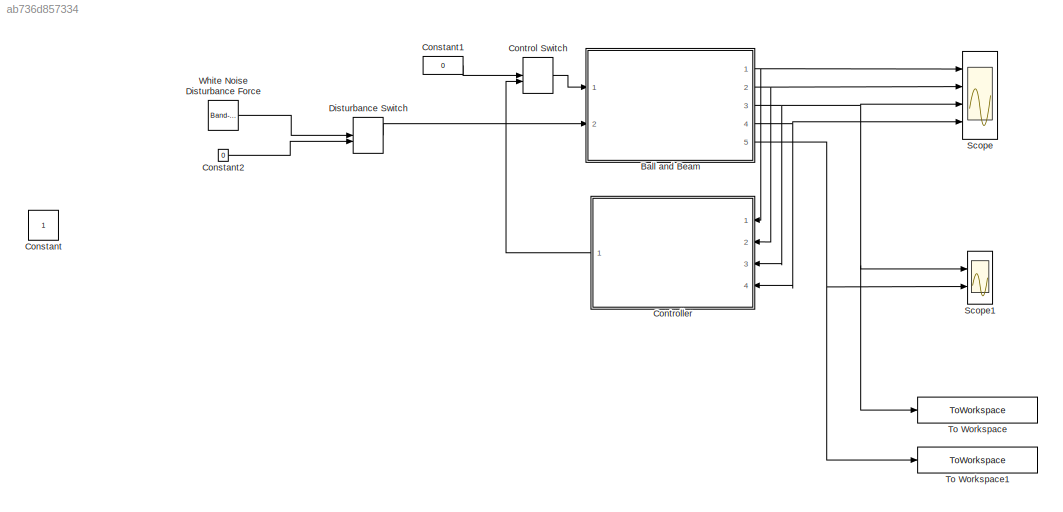
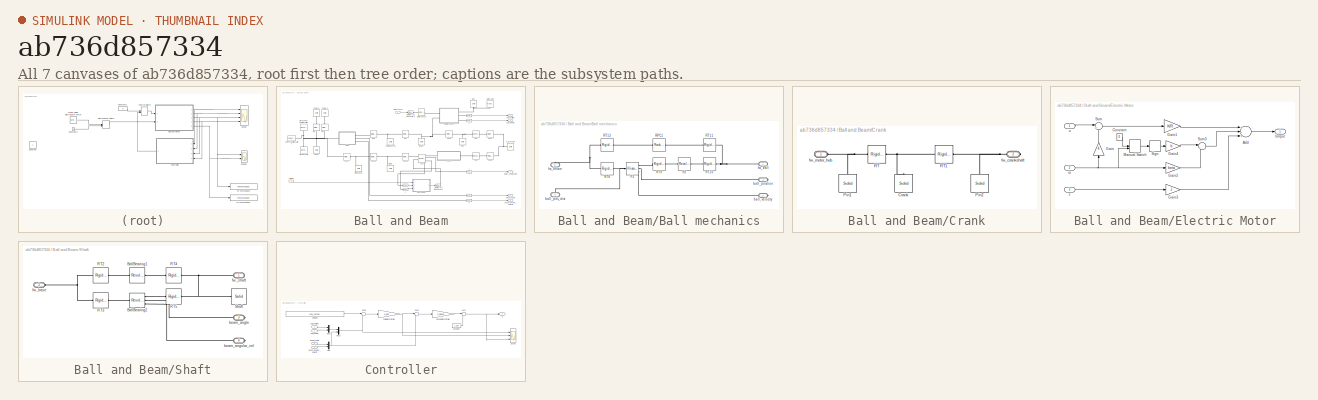
[diagram: thumbnail index - all 7 canvases of the model, root first then tree order]
MODEL slx_ab736d857334
KIND model
CONFIG AbsTol = auto
CONFIG EnableMultiTasking = off
CONFIG FixedStep = auto
CONFIG MaxStep = 1e-2
CONFIG MinStep = auto
CONFIG RelTol = 1e-3
CONFIG SampleTimeConstraint = Unconstrained
CONFIG Solver = VariableStepAuto
CONFIG SolverName = VariableStepAuto
CONFIG StartTime = 0.0
CONFIG StopTime = 1
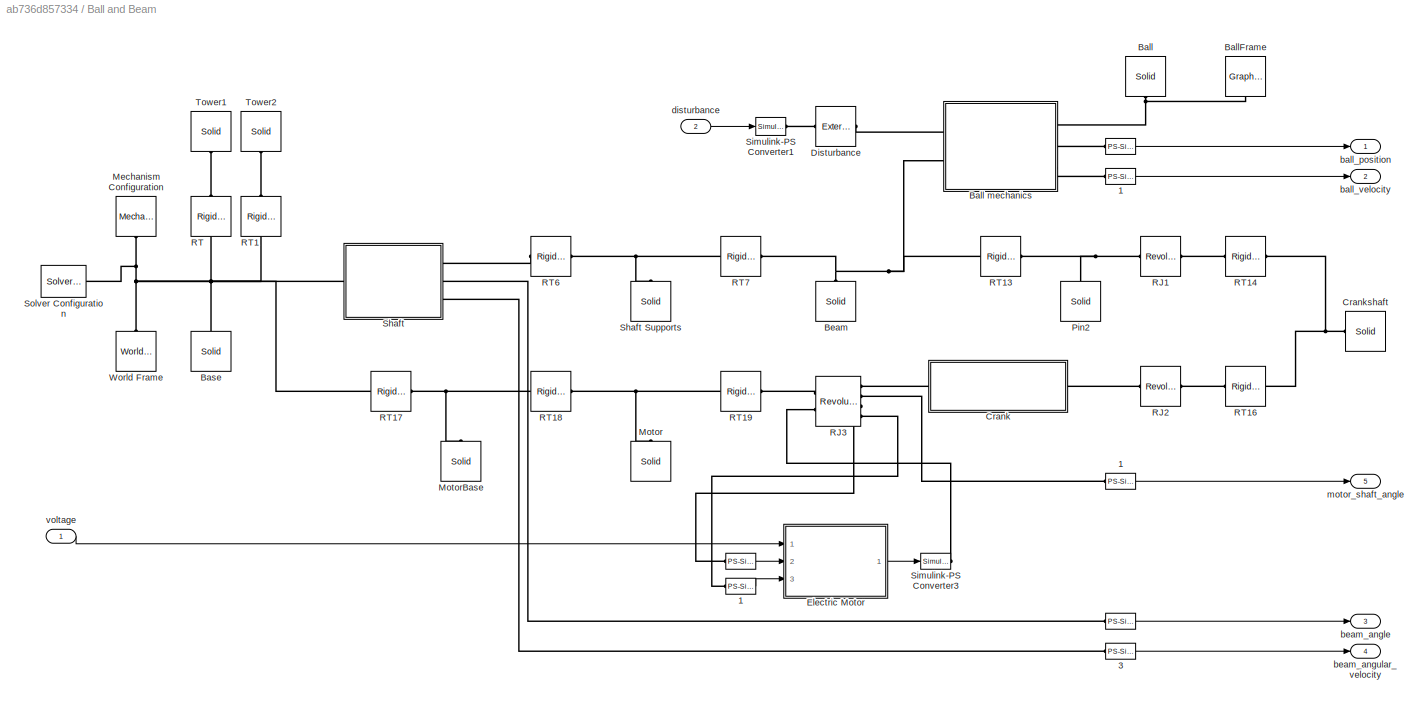
BLOCK [SubSystem] Ball and Beam
  Ports = [2, 5]
  RequestExecContextInheritance = off
  Variant = off
BLOCK [Reference] Ball and Beam/   REF=nesl_utility/PS-Simulink
Converter
  Ports = [0, 1, 0, 0, 0, 1]
  SourceBlock = nesl_utility/PS-Simulink\nConverter
  SourceType = PS-Simulink\nConverter
BLOCK [Reference] Ball and Beam/    REF=nesl_utility/PS-Simulink
Converter
  Ports = [0, 1, 0, 0, 0, 1]
  SourceBlock = nesl_utility/PS-Simulink\nConverter
  SourceType = PS-Simulink\nConverter
BLOCK [Reference] Ball and Beam/       REF=nesl_utility/PS-Simulink
Converter
  Ports = [0, 1, 0, 0, 0, 1]
  SourceBlock = nesl_utility/PS-Simulink\nConverter
  SourceType = PS-Simulink\nConverter
BLOCK [Reference] Ball and Beam/     1  REF=nesl_utility/PS-Simulink
Converter
  Ports = [0, 1, 0, 0, 0, 1]
  SourceBlock = nesl_utility/PS-Simulink\nConverter
  SourceType = PS-Simulink\nConverter
BLOCK [Reference] Ball and Beam/  1  REF=nesl_utility/PS-Simulink
Converter
  Ports = [0, 1, 0, 0, 0, 1]
  SourceBlock = nesl_utility/PS-Simulink\nConverter
  SourceType = PS-Simulink\nConverter
BLOCK [Reference] Ball and Beam/ 1  REF=nesl_utility/PS-Simulink
Converter
  Ports = [0, 1, 0, 0, 0, 1]
  SourceBlock = nesl_utility/PS-Simulink\nConverter
  SourceType = PS-Simulink\nConverter
BLOCK [Reference] Ball and Beam/ 3  REF=nesl_utility/PS-Simulink
Converter
  Ports = [0, 1, 0, 0, 0, 1]
  SourceBlock = nesl_utility/PS-Simulink\nConverter
  SourceType = PS-Simulink\nConverter
BLOCK [Reference] Ball and Beam/Ball  REF=sm_lib/Body Elements/Solid
  Ports = [0, 0, 0, 0, 0, 0, 1]
  SourceBlock = sm_lib/Body Elements/Solid
  SourceType = Solid
BLOCK [SubSystem] Ball and Beam/Ball mechanics
  Ports = [0, 0, 0, 0, 0, 2, 3]
  RequestExecContextInheritance = off
  Variant = off
BLOCK [Reference] Ball and Beam/Ball mechanics/PJ  REF=sm_lib/Joints/Prismatic
Joint
  Ports = [0, 0, 0, 0, 0, 1, 3]
  SourceBlock = sm_lib/Joints/Prismatic\nJoint
  SourceType = Prismatic\nJoint
BLOCK [Reference] Ball and Beam/Ball mechanics/RJ  REF=sm_lib/Joints/Revolute Joint
  Ports = [0, 0, 0, 0, 0, 1, 1]
  SourceBlock = sm_lib/Joints/Revolute Joint
  SourceType = Revolute Joint
BLOCK [Reference] Ball and Beam/Ball mechanics/RPC1  REF=sm_lib/Gears and
Couplings/Gears/Rack and Pinion
Constraint
  Ports = [0, 0, 0, 0, 0, 1, 1]
  SourceBlock = sm_lib/Gears and\nCouplings/Gears/Rack and Pinion\nConstraint
  SourceType = Rack and Pinion\nConstraint
BLOCK [Reference] Ball and Beam/Ball mechanics/RT10  REF=sm_lib/Frames and
Transforms/Rigid
Transform
  Ports = [0, 0, 0, 0, 0, 1, 1]
  SourceBlock = sm_lib/Frames and\nTransforms/Rigid\nTransform
  SourceType = Rigid\nTransform
BLOCK [Reference] Ball and Beam/Ball mechanics/RT11  REF=sm_lib/Frames and
Transforms/Rigid
Transform
  Ports = [0, 0, 0, 0, 0, 1, 1]
  SourceBlock = sm_lib/Frames and\nTransforms/Rigid\nTransform
  SourceType = Rigid\nTransform
BLOCK [Reference] Ball and Beam/Ball mechanics/RT12  REF=sm_lib/Frames and
Transforms/Rigid
Transform
  Ports = [0, 0, 0, 0, 0, 1, 1]
  SourceBlock = sm_lib/Frames and\nTransforms/Rigid\nTransform
  SourceType = Rigid\nTransform
BLOCK [Reference] Ball and Beam/Ball mechanics/RT8  REF=sm_lib/Frames and
Transforms/Rigid
Transform
  Ports = [0, 0, 0, 0, 0, 1, 1]
  SourceBlock = sm_lib/Frames and\nTransforms/Rigid\nTransform
  SourceType = Rigid\nTransform
BLOCK [Reference] Ball and Beam/Ball mechanics/RT9  REF=sm_lib/Frames and
Transforms/Rigid
Transform
  Ports = [0, 0, 0, 0, 0, 1, 1]
  SourceBlock = sm_lib/Frames and\nTransforms/Rigid\nTransform
  SourceType = Rigid\nTransform
BLOCK [PMIOPort] Ball and Beam/Ball mechanics/ball_pos_dist
  Port = 4
  Side = Left
BLOCK [PMIOPort] Ball and Beam/Ball mechanics/ball_position
  Port = 2
  Side = Right
BLOCK [PMIOPort] Ball and Beam/Ball mechanics/ball_velocity
  Port = 3
  Side = Right
BLOCK [PMIOPort] Ball and Beam/Ball mechanics/fw_ball
  Port = 1
  Side = Right
BLOCK [PMIOPort] Ball and Beam/Ball mechanics/fw_beam
  Port = 5
  Side = Left
BLOCK [Reference] Ball and Beam/BallFrame  REF=sm_lib/Body Elements/Graphic
  Ports = [0, 0, 0, 0, 0, 0, 1]
  SourceBlock = sm_lib/Body Elements/Graphic
  SourceType = Graphic
BLOCK [Reference] Ball and Beam/Base  REF=sm_lib/Body Elements/Solid
  Ports = [0, 0, 0, 0, 0, 0, 1]
  SourceBlock = sm_lib/Body Elements/Solid
  SourceType = Solid
BLOCK [Reference] Ball and Beam/Beam  REF=sm_lib/Body Elements/Solid
  Ports = [0, 0, 0, 0, 0, 0, 1]
  SourceBlock = sm_lib/Body Elements/Solid
  SourceType = Solid
BLOCK [SubSystem] Ball and Beam/Crank
  Ports = [0, 0, 0, 0, 0, 1, 1]
  RequestExecContextInheritance = off
  Variant = off
BLOCK [Reference] Ball and Beam/Crank/Crank  REF=sm_lib/Body Elements/Solid
  Ports = [0, 0, 0, 0, 0, 0, 1]
  SourceBlock = sm_lib/Body Elements/Solid
  SourceType = Solid
BLOCK [Reference] Ball and Beam/Crank/Pin1  REF=sm_lib/Body Elements/Solid
  Ports = [0, 0, 0, 0, 0, 0, 1]
  SourceBlock = sm_lib/Body Elements/Solid
  SourceType = Solid
BLOCK [Reference] Ball and Beam/Crank/Pin2  REF=sm_lib/Body Elements/Solid
  Ports = [0, 0, 0, 0, 0, 0, 1]
  SourceBlock = sm_lib/Body Elements/Solid
  SourceType = Solid
BLOCK [Reference] Ball and Beam/Crank/RT  REF=sm_lib/Frames and
Transforms/Rigid
Transform
  Ports = [0, 0, 0, 0, 0, 1, 1]
  SourceBlock = sm_lib/Frames and\nTransforms/Rigid\nTransform
  SourceType = Rigid\nTransform
BLOCK [Reference] Ball and Beam/Crank/RT1  REF=sm_lib/Frames and
Transforms/Rigid
Transform
  Ports = [0, 0, 0, 0, 0, 1, 1]
  SourceBlock = sm_lib/Frames and\nTransforms/Rigid\nTransform
  SourceType = Rigid\nTransform
BLOCK [PMIOPort] Ball and Beam/Crank/fw_crankshaft
  Port = 2
  Side = Right
BLOCK [PMIOPort] Ball and Beam/Crank/fw_motor_hub
  Port = 1
  Side = Left
BLOCK [Reference] Ball and Beam/Crankshaft  REF=sm_lib/Body Elements/Solid
  Ports = [0, 0, 0, 0, 0, 0, 1]
  SourceBlock = sm_lib/Body Elements/Solid
  SourceType = Solid
BLOCK [Reference] Ball and Beam/Disturbance  REF=sm_lib/Forces and
Torques/External Force
and Torque
  Ports = [0, 0, 0, 0, 0, 1, 1]
  SourceBlock = sm_lib/Forces and\nTorques/External Force\nand Torque
  SourceType = External Force\nand Torque
BLOCK [SubSystem] Ball and Beam/Electric Motor
  Ports = [3, 1]
  RequestExecContextInheritance = off
  Variant = off
BLOCK [Sum] Ball and Beam/Electric Motor/Add
  InputSameDT = off
  Inputs = +--
  OutDataTypeStr = Inherit: Inherit via internal rule
  Ports = [3, 1]
  SaturateOnIntegerOverflow = off
BLOCK [Constant] Ball and Beam/Electric Motor/Constant
  Value = 0
BLOCK [Gain] Ball and Beam/Electric Motor/Gain
  Gain = K
  OutDataTypeStr = Inherit: Inherit via internal rule
  ParamDataTypeStr = Inherit: Inherit via internal rule
  SaturateOnIntegerOverflow = off
BLOCK [Gain] Ball and Beam/Electric Motor/Gain1
  Gain = K/R
  OutDataTypeStr = Inherit: Inherit via internal rule
  ParamDataTypeStr = Inherit: Inherit via internal rule
  SaturateOnIntegerOverflow = off
BLOCK [Gain] Ball and Beam/Electric Motor/Gain2
  Gain = beta
  OutDataTypeStr = Inherit: Inherit via internal rule
  ParamDataTypeStr = Inherit: Inherit via internal rule
  SaturateOnIntegerOverflow = off
BLOCK [Gain] Ball and Beam/Electric Motor/Gain3
  Gain = J
  OutDataTypeStr = Inherit: Inherit via internal rule
  ParamDataTypeStr = Inherit: Inherit via internal rule
  SaturateOnIntegerOverflow = off
BLOCK [Gain] Ball and Beam/Electric Motor/Gain4
  Gain = b
  OutDataTypeStr = Inherit: Inherit via internal rule
  ParamDataTypeStr = Inherit: Inherit via internal rule
  SaturateOnIntegerOverflow = off
BLOCK [ManualSwitch] Ball and Beam/Electric Motor/Manual Switch
BLOCK [Signum] Ball and Beam/Electric Motor/Sign
  ZeroCross = off
BLOCK [Sum] Ball and Beam/Electric Motor/Sum
  IconShape = round
  InputSameDT = off
  Inputs = |+-
  OutDataTypeStr = Inherit: Inherit via internal rule
  Ports = [2, 1]
  SaturateOnIntegerOverflow = off
BLOCK [Sum] Ball and Beam/Electric Motor/Sum3
  IconShape = round
  InputSameDT = off
  Inputs = |++
  OutDataTypeStr = Inherit: Inherit via internal rule
  Ports = [2, 1]
  SaturateOnIntegerOverflow = off
BLOCK [Outport] Ball and Beam/Electric Motor/torque
  IconDisplay = Port number
BLOCK [Inport] Ball and Beam/Electric Motor/u
  IconDisplay = Port number
BLOCK [Inport] Ball and Beam/Electric Motor/ε
  IconDisplay = Port number
  Port = 3
BLOCK [Inport] Ball and Beam/Electric Motor/ω
  IconDisplay = Port number
  Port = 2
BLOCK [Reference] Ball and Beam/Mechanism Configuration  REF=sm_lib/Utilities/Mechanism
Configuration
  Ports = [0, 0, 0, 0, 0, 0, 1]
  SourceBlock = sm_lib/Utilities/Mechanism\nConfiguration
  SourceType = Mechanism\nConfiguration
BLOCK [Reference] Ball and Beam/Motor  REF=sm_lib/Body Elements/Solid
  Ports = [0, 0, 0, 0, 0, 0, 1]
  SourceBlock = sm_lib/Body Elements/Solid
  SourceType = Solid
BLOCK [Reference] Ball and Beam/MotorBase  REF=sm_lib/Body Elements/Solid
  Ports = [0, 0, 0, 0, 0, 0, 1]
  SourceBlock = sm_lib/Body Elements/Solid
  SourceType = Solid
BLOCK [Reference] Ball and Beam/Pin2  REF=sm_lib/Body Elements/Solid
  Ports = [0, 0, 0, 0, 0, 0, 1]
  SourceBlock = sm_lib/Body Elements/Solid
  SourceType = Solid
BLOCK [Reference] Ball and Beam/RJ1  REF=sm_lib/Joints/Revolute Joint
  Ports = [0, 0, 0, 0, 0, 1, 1]
  SourceBlock = sm_lib/Joints/Revolute Joint
  SourceType = Revolute Joint
BLOCK [Reference] Ball and Beam/RJ2  REF=sm_lib/Joints/Revolute Joint
  Ports = [0, 0, 0, 0, 0, 1, 1]
  SourceBlock = sm_lib/Joints/Revolute Joint
  SourceType = Revolute Joint
BLOCK [Reference] Ball and Beam/RJ3  REF=sm_lib/Joints/Revolute Joint
  Ports = [0, 0, 0, 0, 0, 2, 4]
  SourceBlock = sm_lib/Joints/Revolute Joint
  SourceType = Revolute Joint
BLOCK [Reference] Ball and Beam/RT  REF=sm_lib/Frames and
Transforms/Rigid
Transform
  Ports = [0, 0, 0, 0, 0, 1, 1]
  SourceBlock = sm_lib/Frames and\nTransforms/Rigid\nTransform
  SourceType = Rigid\nTransform
BLOCK [Reference] Ball and Beam/RT1  REF=sm_lib/Frames and
Transforms/Rigid
Transform
  Ports = [0, 0, 0, 0, 0, 1, 1]
  SourceBlock = sm_lib/Frames and\nTransforms/Rigid\nTransform
  SourceType = Rigid\nTransform
BLOCK [Reference] Ball and Beam/RT13  REF=sm_lib/Frames and
Transforms/Rigid
Transform
  Ports = [0, 0, 0, 0, 0, 1, 1]
  SourceBlock = sm_lib/Frames and\nTransforms/Rigid\nTransform
  SourceType = Rigid\nTransform
BLOCK [Reference] Ball and Beam/RT14  REF=sm_lib/Frames and
Transforms/Rigid
Transform
  Ports = [0, 0, 0, 0, 0, 1, 1]
  SourceBlock = sm_lib/Frames and\nTransforms/Rigid\nTransform
  SourceType = Rigid\nTransform
BLOCK [Reference] Ball and Beam/RT16  REF=sm_lib/Frames and
Transforms/Rigid
Transform
  Ports = [0, 0, 0, 0, 0, 1, 1]
  SourceBlock = sm_lib/Frames and\nTransforms/Rigid\nTransform
  SourceType = Rigid\nTransform
BLOCK [Reference] Ball and Beam/RT17  REF=sm_lib/Frames and
Transforms/Rigid
Transform
  Ports = [0, 0, 0, 0, 0, 1, 1]
  SourceBlock = sm_lib/Frames and\nTransforms/Rigid\nTransform
  SourceType = Rigid\nTransform
BLOCK [Reference] Ball and Beam/RT18  REF=sm_lib/Frames and
Transforms/Rigid
Transform
  Ports = [0, 0, 0, 0, 0, 1, 1]
  SourceBlock = sm_lib/Frames and\nTransforms/Rigid\nTransform
  SourceType = Rigid\nTransform
BLOCK [Reference] Ball and Beam/RT19  REF=sm_lib/Frames and
Transforms/Rigid
Transform
  Ports = [0, 0, 0, 0, 0, 1, 1]
  SourceBlock = sm_lib/Frames and\nTransforms/Rigid\nTransform
  SourceType = Rigid\nTransform
BLOCK [Reference] Ball and Beam/RT6  REF=sm_lib/Frames and
Transforms/Rigid
Transform
  Ports = [0, 0, 0, 0, 0, 1, 1]
  SourceBlock = sm_lib/Frames and\nTransforms/Rigid\nTransform
  SourceType = Rigid\nTransform
BLOCK [Reference] Ball and Beam/RT7  REF=sm_lib/Frames and
Transforms/Rigid
Transform
  Ports = [0, 0, 0, 0, 0, 1, 1]
  SourceBlock = sm_lib/Frames and\nTransforms/Rigid\nTransform
  SourceType = Rigid\nTransform
BLOCK [SubSystem] Ball and Beam/Shaft
  Ports = [0, 0, 0, 0, 0, 1, 3]
  RequestExecContextInheritance = off
  Variant = off
BLOCK [Reference] Ball and Beam/Shaft Supports  REF=sm_lib/Body Elements/Solid
  Ports = [0, 0, 0, 0, 0, 0, 1]
  SourceBlock = sm_lib/Body Elements/Solid
  SourceType = Solid
BLOCK [Reference] Ball and Beam/Shaft/BallBearing1  REF=sm_lib/Joints/Revolute Joint
  Ports = [0, 0, 0, 0, 0, 1, 1]
  SourceBlock = sm_lib/Joints/Revolute Joint
  SourceType = Revolute Joint
BLOCK [Reference] Ball and Beam/Shaft/BallBearing2  REF=sm_lib/Joints/Revolute Joint
  Ports = [0, 0, 0, 0, 0, 1, 3]
  SourceBlock = sm_lib/Joints/Revolute Joint
  SourceType = Revolute Joint
BLOCK [Reference] Ball and Beam/Shaft/RT2  REF=sm_lib/Frames and
Transforms/Rigid
Transform
  Ports = [0, 0, 0, 0, 0, 1, 1]
  SourceBlock = sm_lib/Frames and\nTransforms/Rigid\nTransform
  SourceType = Rigid\nTransform
BLOCK [Reference] Ball and Beam/Shaft/RT3  REF=sm_lib/Frames and
Transforms/Rigid
Transform
  Ports = [0, 0, 0, 0, 0, 1, 1]
  SourceBlock = sm_lib/Frames and\nTransforms/Rigid\nTransform
  SourceType = Rigid\nTransform
BLOCK [Reference] Ball and Beam/Shaft/RT4  REF=sm_lib/Frames and
Transforms/Rigid
Transform
  Ports = [0, 0, 0, 0, 0, 1, 1]
  SourceBlock = sm_lib/Frames and\nTransforms/Rigid\nTransform
  SourceType = Rigid\nTransform
BLOCK [Reference] Ball and Beam/Shaft/RT5  REF=sm_lib/Frames and
Transforms/Rigid
Transform
  Ports = [0, 0, 0, 0, 0, 1, 1]
  SourceBlock = sm_lib/Frames and\nTransforms/Rigid\nTransform
  SourceType = Rigid\nTransform
BLOCK [Reference] Ball and Beam/Shaft/Shaft  REF=sm_lib/Body Elements/Solid
  Ports = [0, 0, 0, 0, 0, 0, 1]
  SourceBlock = sm_lib/Body Elements/Solid
  SourceType = Solid
BLOCK [PMIOPort] Ball and Beam/Shaft/beam_angle
  Port = 3
  Side = Right
BLOCK [PMIOPort] Ball and Beam/Shaft/beam_angular_vel
  Port = 4
  Side = Right
BLOCK [PMIOPort] Ball and Beam/Shaft/fw_base
  Port = 2
  Side = Left
BLOCK [PMIOPort] Ball and Beam/Shaft/fw_shaft
  Port = 1
  Side = Right
BLOCK [Reference] Ball and Beam/Simulink-PS Converter1  REF=nesl_utility/Simulink-PS
Converter
  Ports = [1, 0, 0, 0, 0, 0, 1]
  SourceBlock = nesl_utility/Simulink-PS\nConverter
  SourceType = Simulink-PS\nConverter
BLOCK [Reference] Ball and Beam/Simulink-PS Converter3  REF=nesl_utility/Simulink-PS
Converter
  Ports = [1, 0, 0, 0, 0, 0, 1]
  SourceBlock = nesl_utility/Simulink-PS\nConverter
  SourceType = Simulink-PS\nConverter
BLOCK [Reference] Ball and Beam/Solver Configuration  REF=nesl_utility/Solver
Configuration
  Ports = [0, 0, 0, 0, 0, 0, 1]
  SourceBlock = nesl_utility/Solver\nConfiguration
  SourceType = Solver\nConfiguration
BLOCK [Reference] Ball and Beam/Tower1  REF=sm_lib/Body Elements/Solid
  Ports = [0, 0, 0, 0, 0, 0, 1]
  SourceBlock = sm_lib/Body Elements/Solid
  SourceType = Solid
BLOCK [Reference] Ball and Beam/Tower2  REF=sm_lib/Body Elements/Solid
  Ports = [0, 0, 0, 0, 0, 0, 1]
  SourceBlock = sm_lib/Body Elements/Solid
  SourceType = Solid
BLOCK [Reference] Ball and Beam/World Frame  REF=sm_lib/Frames and
Transforms/World Frame
  Ports = [0, 0, 0, 0, 0, 0, 1]
  SourceBlock = sm_lib/Frames and\nTransforms/World Frame
  SourceType = World Frame
BLOCK [Outport] Ball and Beam/ball_position
  IconDisplay = Port number
BLOCK [Outport] Ball and Beam/ball_velocity
  IconDisplay = Port number
  Port = 2
BLOCK [Outport] Ball and Beam/beam_angle
  IconDisplay = Port number
  Port = 3
BLOCK [Outport] Ball and Beam/beam_angular_velocity
  IconDisplay = Port number
  Port = 4
BLOCK [Inport] Ball and Beam/disturbance
  IconDisplay = Port number
  Port = 2
BLOCK [Outport] Ball and Beam/motor_shaft_angle
  IconDisplay = Port number
  Port = 5
BLOCK [Inport] Ball and Beam/voltage
  IconDisplay = Port number
BLOCK [Constant] Constant
  IOType = siggen
BLOCK [Constant] Constant1
  Value = 0
BLOCK [Constant] Constant2
  Value = 0
BLOCK [ManualSwitch] Control Switch
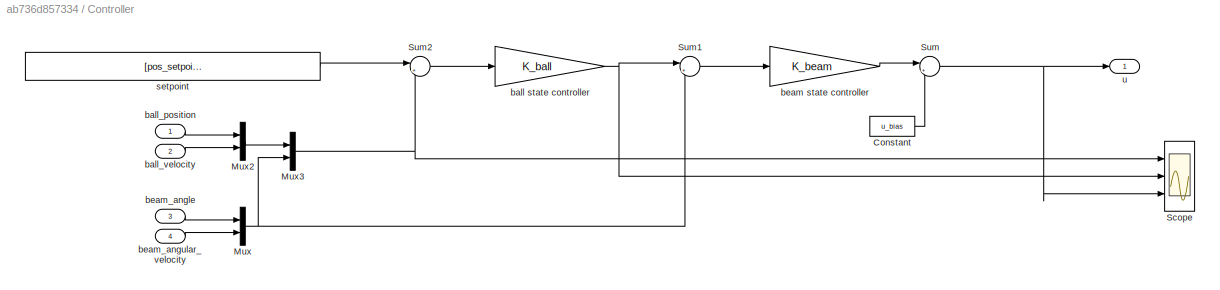
BLOCK [SubSystem] Controller
  Ports = [4, 1]
  RequestExecContextInheritance = off
  Variant = off
BLOCK [Constant] Controller/Constant
  Value = u_bias
BLOCK [Mux] Controller/Mux
  DisplayOption = bar
  Inputs = 2
  Ports = [2, 1]
BLOCK [Mux] Controller/Mux2
  DisplayOption = bar
  Inputs = 2
  Ports = [2, 1]
BLOCK [Mux] Controller/Mux3
  DisplayOption = bar
  Inputs = 2
  Ports = [2, 1]
BLOCK [Scope] Controller/Scope
  NumInputPorts = 3
  Ports = [3]
  ScopeSpecificationString = Simulink.scopes.TimeScopeBlockCfg('CurrentConfiguration', extmgr.ConfigurationSet(extmgr.Configuration('Core','General UI',true,'FigureColor',[1 1 1]),extmgr.Configuration('Core','Source UI',true),extmgr.Configuration('Sources','WiredSimulink',true,'DataLogging',true,'DataLoggingVariableName','nonlinear_control_data','DataLoggingSaveFormat','StructureWithTime'),extmgr.Configuration('Visuals','Time...<+3023ch>
BLOCK [Sum] Controller/Sum
  IconShape = round
  InputSameDT = off
  Inputs = |++
  OutDataTypeStr = Inherit: Inherit via internal rule
  Ports = [2, 1]
  SaturateOnIntegerOverflow = off
BLOCK [Sum] Controller/Sum1
  IconShape = round
  InputSameDT = off
  Inputs = |+-
  OutDataTypeStr = Inherit: Inherit via internal rule
  Ports = [2, 1]
  SaturateOnIntegerOverflow = off
BLOCK [Sum] Controller/Sum2
  IconShape = round
  InputSameDT = off
  Inputs = |+-
  OutDataTypeStr = Inherit: Inherit via internal rule
  Ports = [2, 1]
  SaturateOnIntegerOverflow = off
BLOCK [Gain] Controller/ball state controller
  Gain = K_ball
  Multiplication = Matrix(K*u) (u vector)
  OutDataTypeStr = Inherit: Inherit via internal rule
  ParamDataTypeStr = Inherit: Inherit via internal rule
  SaturateOnIntegerOverflow = off
BLOCK [Inport] Controller/ball_position
  IconDisplay = Port number
BLOCK [Inport] Controller/ball_velocity
  IconDisplay = Port number
  Port = 2
BLOCK [Gain] Controller/beam state controller
  Gain = K_beam
  Multiplication = Matrix(K*u) (u vector)
  OutDataTypeStr = Inherit: Inherit via internal rule
  ParamDataTypeStr = Inherit: Inherit via internal rule
  SaturateOnIntegerOverflow = off
BLOCK [Inport] Controller/beam_angle
  IconDisplay = Port number
  Port = 3
BLOCK [Inport] Controller/beam_angular_velocity
  IconDisplay = Port number
  Port = 4
BLOCK [Constant] Controller/setpoint
  Value = [pos_setpoint vel_setpoint ang_setpoint angvel_setpoint]
BLOCK [Outport] Controller/u
  IconDisplay = Port number
BLOCK [ManualSwitch] Disturbance Switch
  CurrentSetting = 0
BLOCK [Scope] Scope
  NumInputPorts = 4
  Ports = [4]
  ScopeSpecificationString = Simulink.scopes.TimeScopeBlockCfg('CurrentConfiguration', extmgr.ConfigurationSet(extmgr.Configuration('Core','General UI',true),extmgr.Configuration('Core','Source UI',true),extmgr.Configuration('Sources','WiredSimulink',true,'DataLogging',true,'DataLoggingVariableName','nonlinear_model_response','DataLoggingSaveFormat','StructureWithTime'),extmgr.Configuration('Visuals','Time Domain',true,'Seria...<+3512ch>
BLOCK [Scope] Scope1
  Commented = on
  NumInputPorts = 2
  Ports = [2]
  ScopeSpecificationString = Simulink.scopes.TimeScopeBlockCfg('CurrentConfiguration', extmgr.ConfigurationSet(extmgr.Configuration('Core','General UI',true),extmgr.Configuration('Core','Source UI',true),extmgr.Configuration('Sources','WiredSimulink',true,'DataLoggingVariableName','ScopeData1'),extmgr.Configuration('Visuals','Time Domain',true,'SerializedDisplays',{struct('MinYLimReal','-6.03951','MaxYLimReal','51.40449','YLa...<+1421ch>
BLOCK [ToWorkspace] To Workspace
  Commented = on
  FixptAsFi = on
  MaxDataPoints = inf
  Ports = [1]
  SampleTime = -1
  Save2DSignal = 3-D array (concatenate along third dimension)
  VariableName = beam_angle
BLOCK [ToWorkspace] To Workspace1
  Commented = on
  FixptAsFi = on
  MaxDataPoints = inf
  Ports = [1]
  SampleTime = -1
  Save2DSignal = 3-D array (concatenate along third dimension)
  VariableName = encoder_angle
BLOCK [Reference] White Noise Disturbance Force  REF=simulink/Sources/Band-Limited
White Noise
  Ports = [0, 1]
  SourceBlock = simulink/Sources/Band-Limited\nWhite Noise
  SourceType = Band-Limited White Noise.
LINE Ball and Beam/     1:1 -> Ball and Beam/motor_shaft_angle:1
LINE Ball and Beam/     :1 -> Ball and Beam/beam_angle:1
LINE Ball and Beam/  1:1 -> Ball and Beam/Electric Motor:3
LINE Ball and Beam/  :1 -> Ball and Beam/Electric Motor:2
LINE Ball and Beam/ 1:1 -> Ball and Beam/ball_velocity:1
LINE Ball and Beam/ 3:1 -> Ball and Beam/beam_angular_velocity:1
LINE Ball and Beam/ :1 -> Ball and Beam/ball_position:1
LINE Ball and Beam/Electric Motor/Add:1 -> Ball and Beam/Electric Motor/torque:1
LINE Ball and Beam/Electric Motor/Constant:1 -> Ball and Beam/Electric Motor/Manual Switch:1
LINE Ball and Beam/Electric Motor/Gain1:1 -> Ball and Beam/Electric Motor/Add:1
LINE Ball and Beam/Electric Motor/Gain2:1 -> Ball and Beam/Electric Motor/Sum3:2
LINE Ball and Beam/Electric Motor/Gain3:1 -> Ball and Beam/Electric Motor/Add:3
LINE Ball and Beam/Electric Motor/Gain4:1 -> Ball and Beam/Electric Motor/Sum3:1
LINE Ball and Beam/Electric Motor/Gain:1 -> Ball and Beam/Electric Motor/Sum:2
LINE Ball and Beam/Electric Motor/Manual Switch:1 -> Ball and Beam/Electric Motor/Sign:1
LINE Ball and Beam/Electric Motor/Sign:1 -> Ball and Beam/Electric Motor/Gain4:1
LINE Ball and Beam/Electric Motor/Sum3:1 -> Ball and Beam/Electric Motor/Add:2
LINE Ball and Beam/Electric Motor/Sum:1 -> Ball and Beam/Electric Motor/Gain1:1
LINE Ball and Beam/Electric Motor/u:1 -> Ball and Beam/Electric Motor/Sum:1
LINE Ball and Beam/Electric Motor/ε:1 -> Ball and Beam/Electric Motor/Gain3:1
NET Ball and Beam/Electric Motor/ω:1 -> Ball and Beam/Electric Motor/Gain2:1, Ball and Beam/Electric Motor/Gain:1, Ball and Beam/Electric Motor/Manual Switch:2
LINE Ball and Beam/Electric Motor:1 -> Ball and Beam/Simulink-PS Converter3:1
LINE Ball and Beam/disturbance:1 -> Ball and Beam/Simulink-PS Converter1:1
LINE Ball and Beam/voltage:1 -> Ball and Beam/Electric Motor:1
NET Ball and Beam:1 -> Controller:1, Scope:1
NET Ball and Beam:2 -> Controller:2, Scope:2
NET Ball and Beam:3 -> Controller:3, Scope1:1, Scope:3, To Workspace:1
NET Ball and Beam:4 -> Controller:4, Scope:4
NET Ball and Beam:5 -> Scope1:2, To Workspace1:1
LINE Constant1:1 -> Control Switch:1
LINE Constant2:1 -> Disturbance Switch:2
LINE Control Switch:1 -> Ball and Beam:1
LINE Controller/Constant:1 -> Controller/Sum:2
LINE Controller/Mux2:1 -> Controller/Mux3:1
NET Controller/Mux3:1 -> Controller/Scope:1, Controller/Sum2:2
NET Controller/Mux:1 -> Controller/Mux3:2, Controller/Sum1:2
LINE Controller/Sum1:1 -> Controller/beam state controller:1
LINE Controller/Sum2:1 -> Controller/ball state controller:1
NET Controller/Sum:1 -> Controller/Scope:3, Controller/u:1
NET Controller/ball state controller:1 -> Controller/Scope:2, Controller/Sum1:1
LINE Controller/ball_position:1 -> Controller/Mux2:1
LINE Controller/ball_velocity:1 -> Controller/Mux2:2
LINE Controller/beam state controller:1 -> Controller/Sum:1
LINE Controller/beam_angle:1 -> Controller/Mux:1
LINE Controller/beam_angular_velocity:1 -> Controller/Mux:2
LINE Controller/setpoint:1 -> Controller/Sum2:1
LINE Controller:1 -> Control Switch:2
LINE Disturbance Switch:1 -> Ball and Beam:2
LINE White Noise Disturbance Force:1 -> Disturbance Switch:1
PLINE Ball and Beam/     1:LConn1 -- Ball and Beam/RJ3:RConn2
PLINE Ball and Beam/     :LConn1 -- Ball and Beam/Shaft:RConn2
PLINE Ball and Beam/  1:LConn1 -- Ball and Beam/RJ3:RConn4
PLINE Ball and Beam/  :LConn1 -- Ball and Beam/RJ3:RConn3
PLINE Ball and Beam/ 1:LConn1 -- Ball and Beam/Ball mechanics:RConn3
PLINE Ball and Beam/ 3:LConn1 -- Ball and Beam/Shaft:RConn3
PLINE Ball and Beam/ :LConn1 -- Ball and Beam/Ball mechanics:RConn2
PNET net1: Ball and Beam/Ball mechanics/PJ:LConn1 -- Ball and Beam/Ball mechanics/RT8:RConn1 -- Ball and Beam/Ball mechanics/ball_pos_dist:RConn1
PLINE Ball and Beam/Ball mechanics/PJ:RConn1 -- Ball and Beam/Ball mechanics/RT9:LConn1
PLINE Ball and Beam/Ball mechanics/PJ:RConn2 -- Ball and Beam/Ball mechanics/ball_position:RConn1
PLINE Ball and Beam/Ball mechanics/PJ:RConn3 -- Ball and Beam/Ball mechanics/ball_velocity:RConn1
PLINE Ball and Beam/Ball mechanics/RJ:LConn1 -- Ball and Beam/Ball mechanics/RT9:RConn1
PLINE Ball and Beam/Ball mechanics/RJ:RConn1 -- Ball and Beam/Ball mechanics/RT10:LConn1
PLINE Ball and Beam/Ball mechanics/RPC1:LConn1 -- Ball and Beam/Ball mechanics/RT11:RConn1
PLINE Ball and Beam/Ball mechanics/RPC1:RConn1 -- Ball and Beam/Ball mechanics/RT12:RConn1
PNET net2: Ball and Beam/Ball mechanics/RT10:RConn1 -- Ball and Beam/Ball mechanics/RT11:LConn1 -- Ball and Beam/Ball mechanics/fw_ball:RConn1
PNET net3: Ball and Beam/Ball mechanics/RT12:LConn1 -- Ball and Beam/Ball mechanics/RT8:LConn1 -- Ball and Beam/Ball mechanics/fw_beam:RConn1
PLINE Ball and Beam/Ball mechanics:LConn1 -- Ball and Beam/Disturbance:RConn1
PNET net4: Ball and Beam/Ball mechanics:LConn2 -- Ball and Beam/Beam:RConn1 -- Ball and Beam/RT13:LConn1 -- Ball and Beam/RT7:RConn1
PNET net5: Ball and Beam/Ball mechanics:RConn1 -- Ball and Beam/Ball:RConn1 -- Ball and Beam/BallFrame:RConn1
PNET net6: Ball and Beam/Base:RConn1 -- Ball and Beam/Mechanism Configuration:RConn1 -- Ball and Beam/RT17:LConn1 -- Ball and Beam/RT1:LConn1 -- Ball and Beam/RT:LConn1 -- Ball and Beam/Shaft:LConn1 -- Ball and Beam/Solver Configuration:RConn1 -- Ball and Beam/World Frame:RConn1
PNET net7: Ball and Beam/Crank/Crank:RConn1 -- Ball and Beam/Crank/RT1:LConn1 -- Ball and Beam/Crank/RT:RConn1
PNET net8: Ball and Beam/Crank/Pin1:RConn1 -- Ball and Beam/Crank/RT:LConn1 -- Ball and Beam/Crank/fw_motor_hub:RConn1
PNET net9: Ball and Beam/Crank/Pin2:RConn1 -- Ball and Beam/Crank/RT1:RConn1 -- Ball and Beam/Crank/fw_crankshaft:RConn1
PLINE Ball and Beam/Crank:LConn1 -- Ball and Beam/RJ3:RConn1
PLINE Ball and Beam/Crank:RConn1 -- Ball and Beam/RJ2:LConn1
PNET net10: Ball and Beam/Crankshaft:RConn1 -- Ball and Beam/RT14:RConn1 -- Ball and Beam/RT16:RConn1
PLINE Ball and Beam/Disturbance:LConn1 -- Ball and Beam/Simulink-PS Converter1:RConn1
PNET net11: Ball and Beam/Motor:RConn1 -- Ball and Beam/RT18:RConn1 -- Ball and Beam/RT19:LConn1
PNET net12: Ball and Beam/MotorBase:RConn1 -- Ball and Beam/RT17:RConn1 -- Ball and Beam/RT18:LConn1
PNET net13: Ball and Beam/Pin2:RConn1 -- Ball and Beam/RJ1:LConn1 -- Ball and Beam/RT13:RConn1
PLINE Ball and Beam/RJ1:RConn1 -- Ball and Beam/RT14:LConn1
PLINE Ball and Beam/RJ2:RConn1 -- Ball and Beam/RT16:LConn1
PLINE Ball and Beam/RJ3:LConn1 -- Ball and Beam/RT19:RConn1
PLINE Ball and Beam/RJ3:LConn2 -- Ball and Beam/Simulink-PS Converter3:RConn1
PLINE Ball and Beam/RT1:RConn1 -- Ball and Beam/Tower2:RConn1
PLINE Ball and Beam/RT6:LConn1 -- Ball and Beam/Shaft:RConn1
PNET net14: Ball and Beam/RT6:RConn1 -- Ball and Beam/RT7:LConn1 -- Ball and Beam/Shaft Supports:RConn1
PLINE Ball and Beam/RT:RConn1 -- Ball and Beam/Tower1:RConn1
PLINE Ball and Beam/Shaft/BallBearing1:LConn1 -- Ball and Beam/Shaft/RT2:RConn1
PLINE Ball and Beam/Shaft/BallBearing1:RConn1 -- Ball and Beam/Shaft/RT4:LConn1
PLINE Ball and Beam/Shaft/BallBearing2:LConn1 -- Ball and Beam/Shaft/RT3:RConn1
PLINE Ball and Beam/Shaft/BallBearing2:RConn1 -- Ball and Beam/Shaft/RT5:LConn1
PLINE Ball and Beam/Shaft/BallBearing2:RConn2 -- Ball and Beam/Shaft/beam_angle:RConn1
PLINE Ball and Beam/Shaft/BallBearing2:RConn3 -- Ball and Beam/Shaft/beam_angular_vel:RConn1
PNET net15: Ball and Beam/Shaft/RT2:LConn1 -- Ball and Beam/Shaft/RT3:LConn1 -- Ball and Beam/Shaft/fw_base:RConn1
PNET net16: Ball and Beam/Shaft/RT4:RConn1 -- Ball and Beam/Shaft/RT5:RConn1 -- Ball and Beam/Shaft/Shaft:RConn1 -- Ball and Beam/Shaft/fw_shaft:RConn1
note: NET lines group one-source signal fan-out (src -> all destinations, sorted); 1:1 wires keep LINE; PNET lines group multi-terminal physical nets as a canonical sorted terminal list (undirected conserving connections); 2-terminal nets keep the pairwise PLINE form
